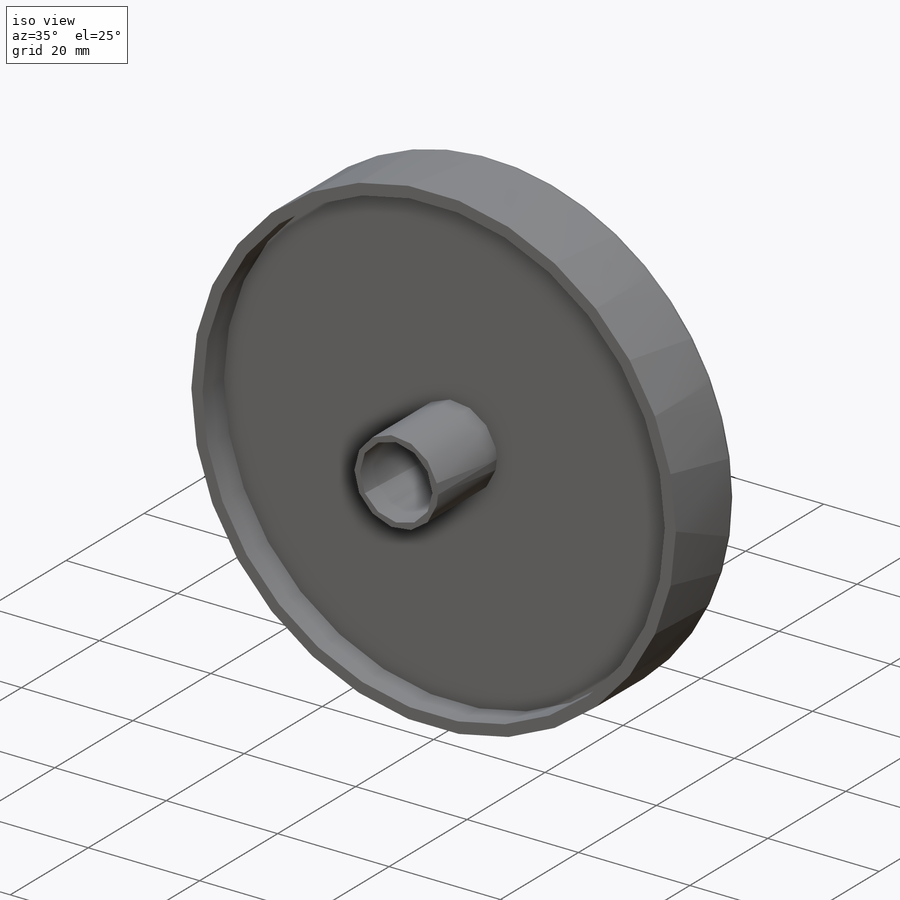
[diagram: iso view]
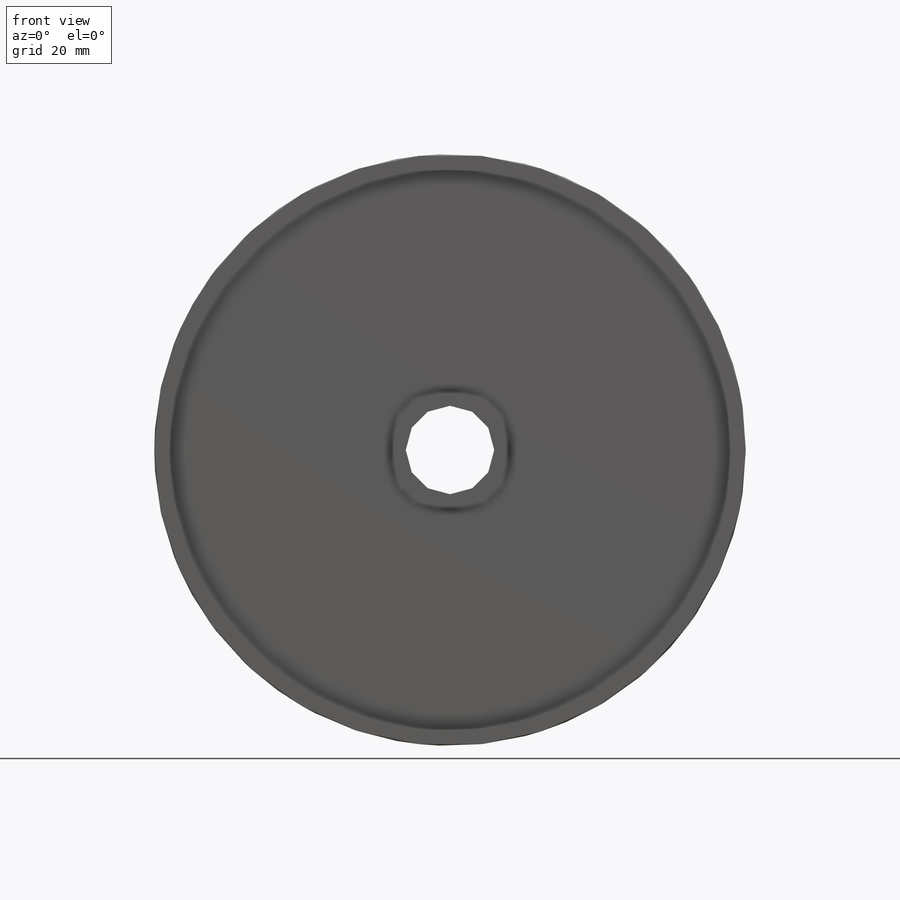
[diagram: front view]
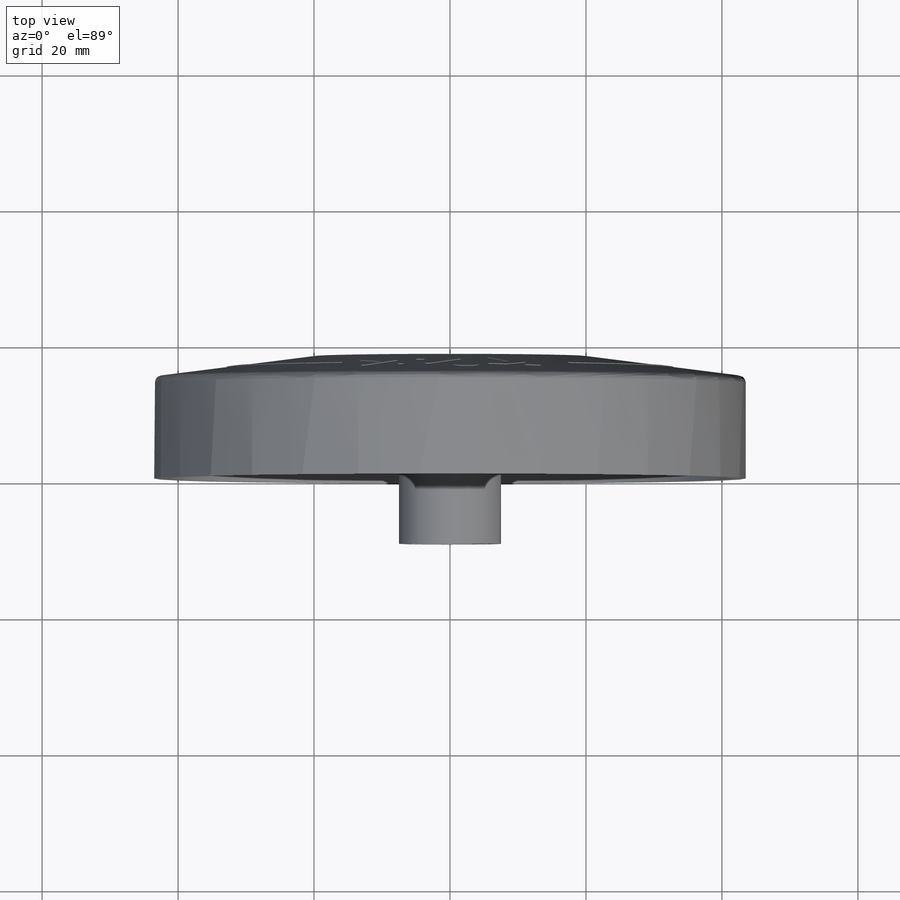
[diagram: top view]
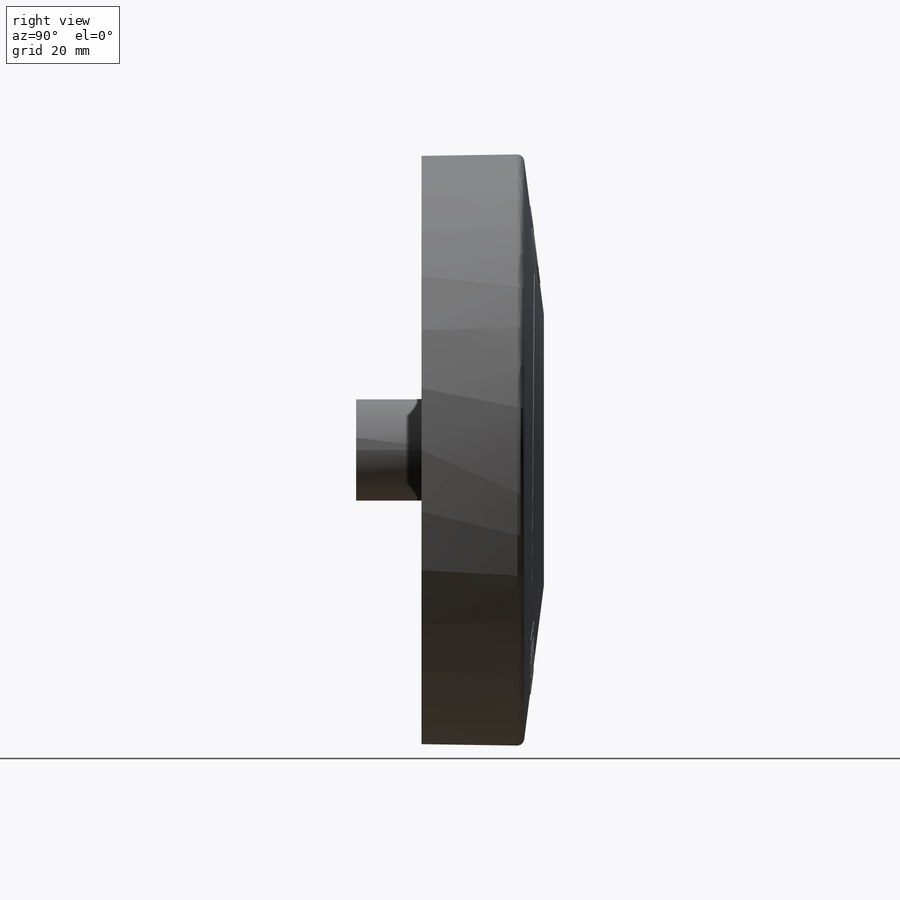
[diagram: right view]
SOLIDWORKS PART (.sldprt)
format: sldprt  version: not decoded by parser v0  size: 911,872 bytes
history: native  units: mm
features: thread x12, sketch x9, extrude x3, cut_extrude x2, material x1, revolve x1, hole x1, fillet x1, plane x1 (+11 scaffold rows collapsed)
feature tree (42):
  scaffold x11  (default folders/planes/origin — collapsed)
  material  "3.1355 (EN-AW 2024)"
  sketch  "Эскиз1"  dims[D1=15.0mm D2=43.5mm D3=20.0mm D4=18.0mm]
  revolve  "Повернуть1"  Angle=360deg
  sketch  "Эскиз2"  dims[D1=83.0mm]
  cut_extrude  "Вырез-Вытянуть1"  Depth=13mm
  sketch  "Эскиз3"  dims[D1=13.0mm]
  cut_extrude  "Вырез-Вытянуть2"  [1 undecoded]
  sketch  "Эскиз4"  dims[D1=15.0mm]
  extrude  "Бобышка-Вытянуть1"  Depth=22.6mm
  sketch  "Эскиз5"  dims[c1.D1=25.0mm c1.D2=35.0mm c1.D3=17.5mm c2.D3=45.0deg c2.D4=4.0]
  hole  "Отверстие обработанное метчиком M3x0.51"  [1 undecoded]
  sketch  "Эскиз7"
  sketch  "Эскиз6"  dims[hole-wizard template sketch: 60 standard entries collapsed; hole parameters kept: c18.Глубина проходного сверла=27.6mm]
  thread  "Отверстие резьбы1"  Diameter=3mm  [1 undecoded]
  thread  "Отверстие резьбы2"  Diameter=3mm  [1 undecoded]
  thread  "Отверстие резьбы3"  Diameter=3mm  [1 undecoded]
  thread  "Отверстие резьбы4"  Diameter=3mm  [1 undecoded]
  thread  "Отверстие резьбы5"  Diameter=3mm  [1 undecoded]
  thread  "Отверстие резьбы6"  Diameter=3mm  [1 undecoded]
  thread  "Отверстие резьбы7"  Diameter=3mm  [1 undecoded]
  thread  "Отверстие резьбы8"  Diameter=3mm  [1 undecoded]
  thread  "Отверстие резьбы9"  Diameter=3mm  [1 undecoded]
  thread  "Отверстие резьбы10"  Diameter=3mm  [1 undecoded]
  thread  "Отверстие резьбы11"  Diameter=3mm  [1 undecoded]
  thread  "Отверстие резьбы12"  Diameter=3mm  [1 undecoded]
  fillet  "Скругление1"  Radius=1mm
  sketch  "Эскиз8"  dims[D1=0.0mm]
  extrude  "Бобышка-Вытянуть2"  Depth=7.5mm
  plane  "Плоскость1"  Offset=0mm
  sketch  "Эскиз10"
  extrude  "Бобышка-Вытянуть21"  Depth=0.1mm
decode coverage: 25 of 29 modeling features carry decoded parameters
note: ~ marks probable driven/reference dimensions
note: 14 parameter values undecoded
note: suppression state not decoded; provenance and decode notes live in map.json
